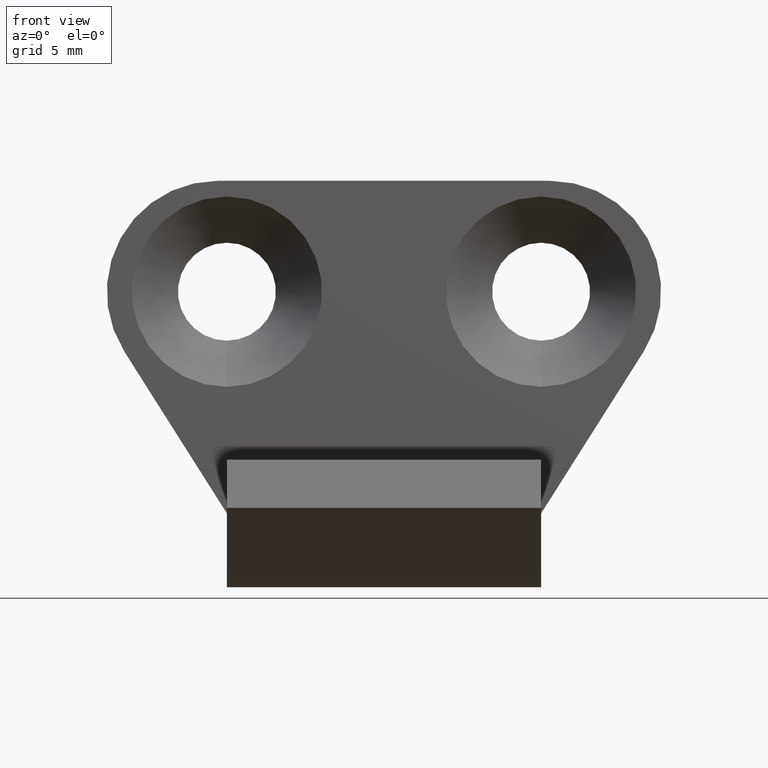
[diagram: clean part render]
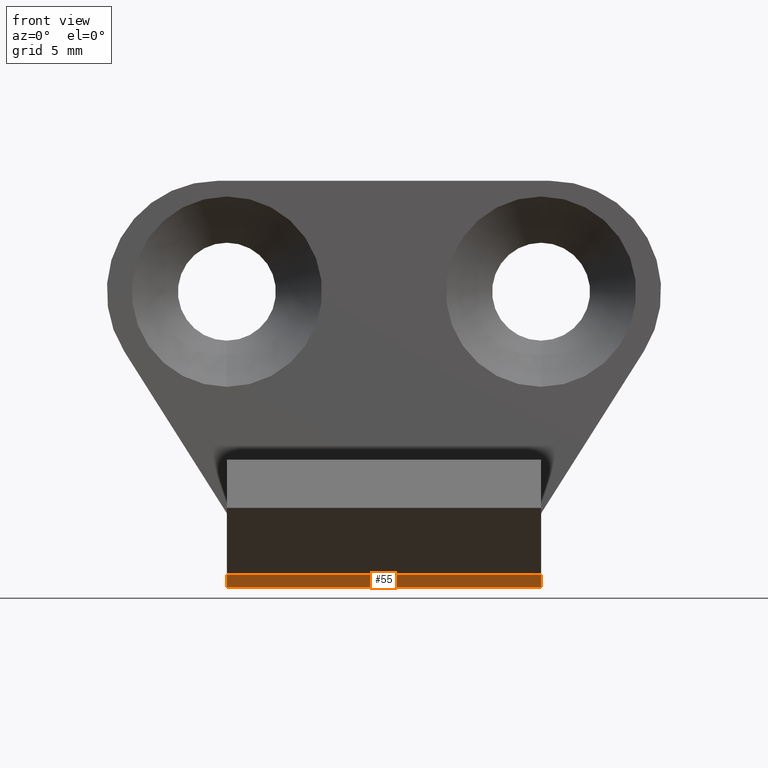
[diagram: same view with one face highlighted and labeled with its STEP entity id]
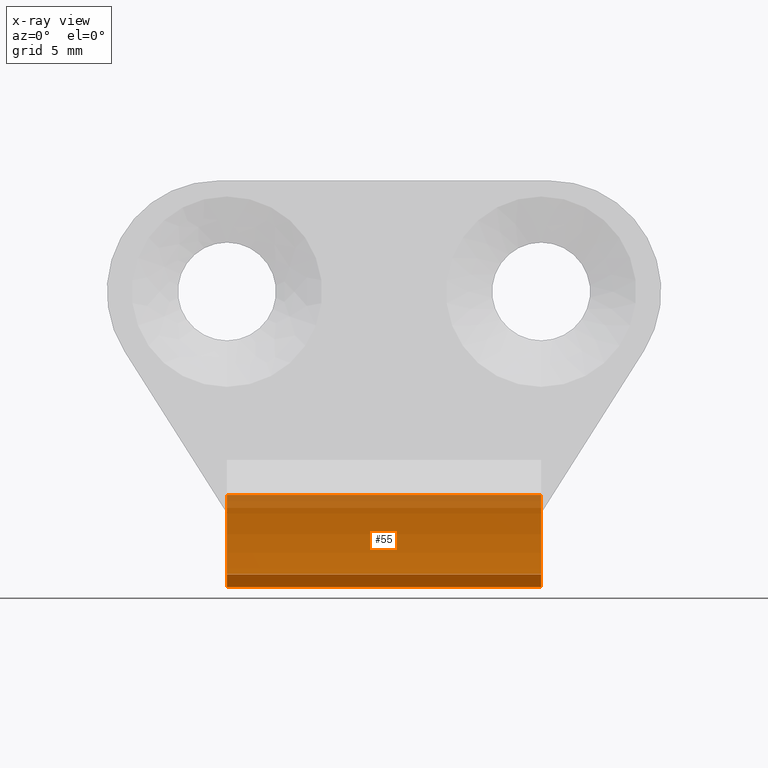
[diagram: x-ray of the same camera — body ghosted, the highlighted face saturated]
A machine part, front view. The second image highlights one B-rep face of the part: STEP entity #55.
The next image is the same camera in x-ray: the body ghosted, the highlighted face saturated — about 86% of this face is hidden behind the body in this view.
In plain terms, the highlighted cylindrical surface (partial cylindrical patch) has radius 5 mm, axis along (1, -0, -0).
Its self-contained STEP definition (entity closure, byte-faithful):
#55=ADVANCED_FACE('',(#219),#218,.T.);
#218=CYLINDRICAL_SURFACE('',#390,5.00000000000E+00);
#219=FACE_OUTER_BOUND('',#391,.T.);
#387=CARTESIAN_POINT('',(9.91500000000E+02,-2.00000000000E+00,-1.10000000000E+01));
#388=DIRECTION('',(1.00000000000E+00,-0.00000000000E+00,-0.00000000000E+00));
#389=DIRECTION('',(0.00000000000E+00,-4.92423560103E-01,8.70355695940E-01));
#390=AXIS2_PLACEMENT_3D('',#387,#388,#389);
#391=EDGE_LOOP('',(#538,#539,#540,#541,#542,#543));
#538=ORIENTED_EDGE('',*,*,#615,.F.);
#539=ORIENTED_EDGE('',*,*,#619,.F.);
#540=ORIENTED_EDGE('',*,*,#607,.T.);
#541=ORIENTED_EDGE('',*,*,#601,.T.);
#542=ORIENTED_EDGE('',*,*,#598,.T.);
#543=ORIENTED_EDGE('',*,*,#603,.F.);
#598=EDGE_CURVE('',#787,#780,#788,.T.);
#601=EDGE_CURVE('',#800,#787,#807,.T.);
#603=EDGE_CURVE('',#813,#780,#820,.T.);
#607=EDGE_CURVE('',#846,#800,#847,.T.);
#615=EDGE_CURVE('',#892,#813,#899,.T.);
#619=EDGE_CURVE('',#846,#892,#924,.T.);
#780=VERTEX_POINT('',#1123);
#787=VERTEX_POINT('',#1127);
#788=LINE('',#1128,#1129);
#800=VERTEX_POINT('',#1134);
#807=CIRCLE('',#1141,5.00000000000E+00);
#813=VERTEX_POINT('',#1142);
#820=CIRCLE('',#1149,5.00000000000E+00);
#846=VERTEX_POINT('',#1161);
#847=CIRCLE('',#1165,5.00000000000E+00);
#892=VERTEX_POINT('',#1188);
#899=CIRCLE('',#1195,5.00000000000E+00);
#924=LINE('',#1207,#1208);
#1123=CARTESIAN_POINT('',(-8.50000000000E+00,-4.55826657372E+00,-1.52959599786E+01));
#1127=CARTESIAN_POINT('',(8.50000000000E+00,-4.55826657372E+00,-1.52959599786E+01));
#1128=CARTESIAN_POINT('',(8.50000000000E+00,-4.55826657372E+00,-1.52959599786E+01));
#1129=VECTOR('',#1130,1.70000000000E+01);
#1130=DIRECTION('',(-1.00000000000E+00,0.00000000000E+00,0.00000000000E+00));
#1134=CARTESIAN_POINT('',(8.50000000000E+00,2.89897948553E+00,-1.20000000002E+01));
#1138=CARTESIAN_POINT('',(8.50000000000E+00,-2.00000000000E+00,-1.10000000000E+01));
#1139=DIRECTION('',(-1.00000000000E+00,-0.00000000000E+00,0.00000000000E+00));
#1140=DIRECTION('',(0.00000000000E+00,-0.00000000000E+00,1.00000000000E+00));
#1141=AXIS2_PLACEMENT_3D('',#1138,#1139,#1140);
#1142=CARTESIAN_POINT('',(-8.50000000000E+00,2.89897948553E+00,-1.20000000002E+01));
#1146=CARTESIAN_POINT('',(-8.50000000000E+00,-2.00000000000E+00,-1.10000000000E+01));
#1147=DIRECTION('',(-1.00000000000E+00,-0.00000000000E+00,0.00000000000E+00));
#1148=DIRECTION('',(0.00000000000E+00,-0.00000000000E+00,1.00000000000E+00));
#1149=AXIS2_PLACEMENT_3D('',#1146,#1147,#1148);
#1161=CARTESIAN_POINT('',(8.50000000000E+00,3.00000000000E+00,-1.10000000000E+01));
#1162=CARTESIAN_POINT('',(8.50000000000E+00,-2.00000000000E+00,-1.10000000000E+01));
#1163=DIRECTION('',(-1.00000000000E+00,-0.00000000000E+00,0.00000000000E+00));
#1164=DIRECTION('',(0.00000000000E+00,-0.00000000000E+00,1.00000000000E+00));
#1165=AXIS2_PLACEMENT_3D('',#1162,#1163,#1164);
#1188=CARTESIAN_POINT('',(-8.50000000000E+00,3.00000000000E+00,-1.10000000000E+01));
#1192=CARTESIAN_POINT('',(-8.50000000000E+00,-2.00000000000E+00,-1.10000000000E+01));
#1193=DIRECTION('',(-1.00000000000E+00,-0.00000000000E+00,0.00000000000E+00));
#1194=DIRECTION('',(0.00000000000E+00,-0.00000000000E+00,1.00000000000E+00));
#1195=AXIS2_PLACEMENT_3D('',#1192,#1193,#1194);
#1207=CARTESIAN_POINT('',(8.50000000000E+00,3.00000000000E+00,-1.10000000000E+01));
#1208=VECTOR('',#1209,1.70000000000E+01);
#1209=DIRECTION('',(-1.00000000000E+00,0.00000000000E+00,0.00000000000E+00));